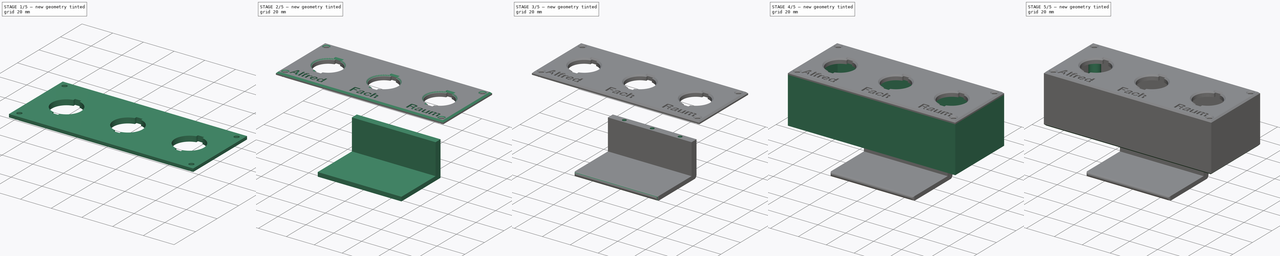
[diagram: build sequence overview — one tinted view per stage of 5, left to right]
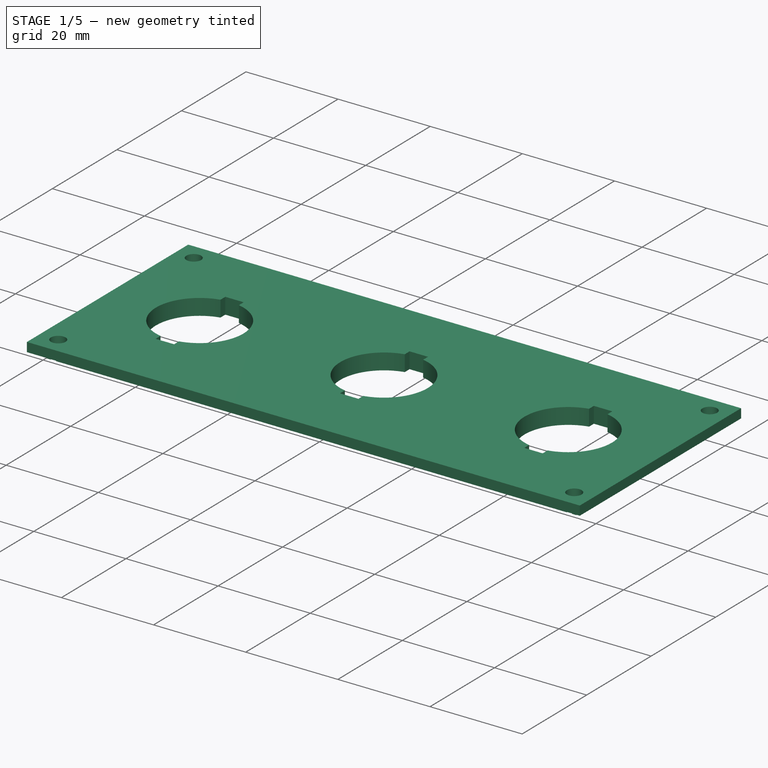
[diagram: stage 1 of 5 — iso view after this stage's code; geometry added in this stage tinted green]
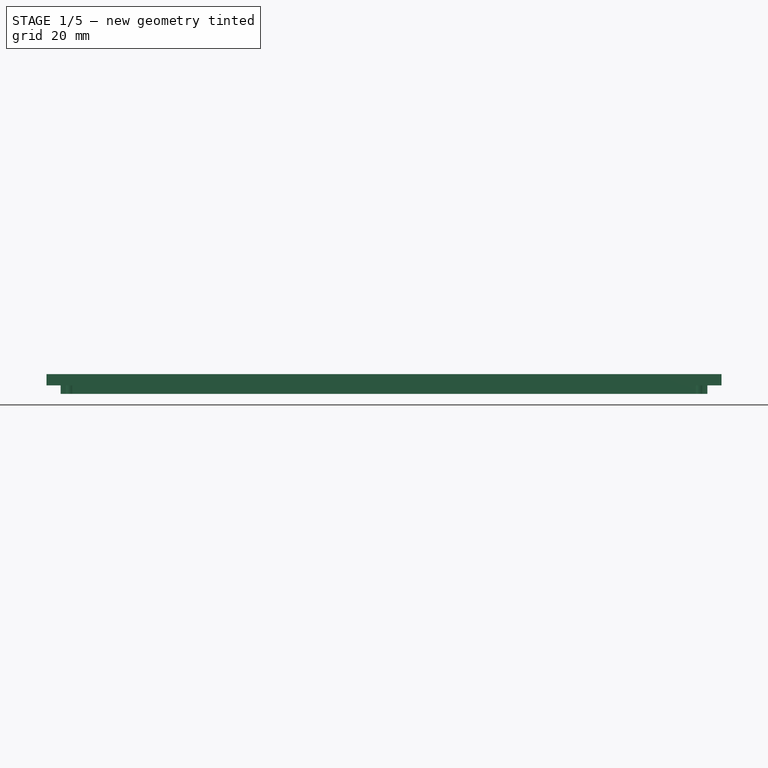
[diagram: stage 1 of 5 — front view after this stage's code; geometry added in this stage tinted green]
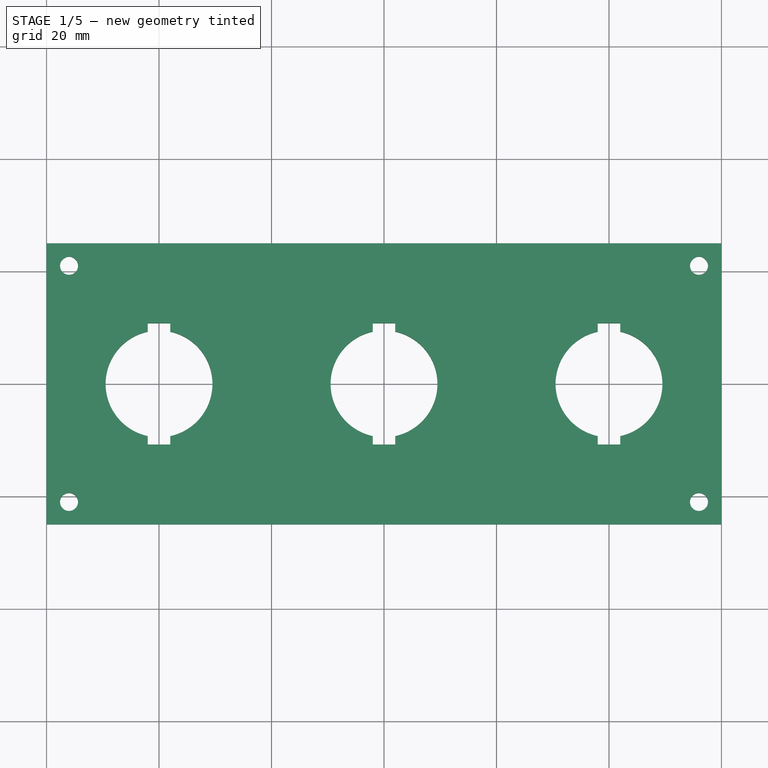
[diagram: stage 1 of 5 — top view after this stage's code; geometry added in this stage tinted green]
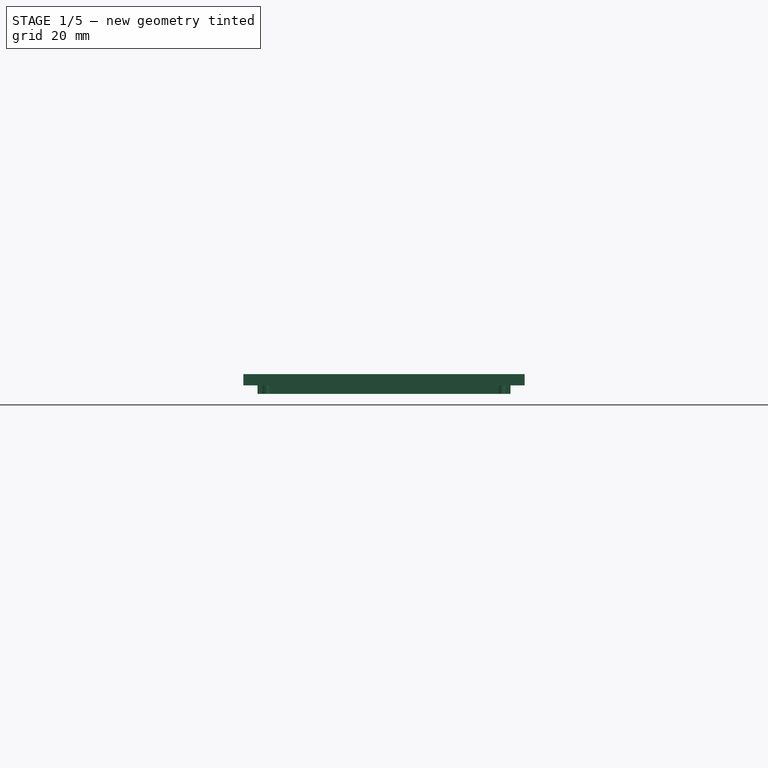
[diagram: stage 1 of 5 — right view after this stage's code; geometry added in this stage tinted green]
FCSTD DOCUMENT  (FreeCAD 1.0R39109 (Git))
Label: 2025-05-06_SchalterPanel
License: All rights reserved
LicenseURL: http://en.wikipedia.org/wiki/All_rights_reserved
objects: Sketcher::SketchObject×13, PartDesign::Pad×7, PartDesign::Pocket×7, PartDesign::Chamfer×3, PartDesign::Body×3, PartDesign::Fillet×2, Part::Part2DObjectPython×1
note: 87 computed .brp shape members not serialized (recipe doc carries the construction recipe); baked Part::Feature solids carry a one-line shape summary decoded from their .brp

FEATURE [PartDesign::Body] Body  label="Gehäuse"
  AllowCompound = false
  Group = -> [Sketch,Pad,Sketch001,Pocket,Sketch002,Pad001,Sketch003,Pocket001,Sketch004,Pad002,Sketch005,Pocket002,Chamfer,Chamfer001]
  Origin = -> Origin
  Tip = -> Chamfer001
FEATURE [Sketcher::SketchObject] Sketch006
  ArcFitTolerance = 1e-06
  AttachmentOffset = pos=(0,0,33) rot=(0,0,1;0rad)
  AttachmentSupport = -> [XY_Plane001]
  FullyConstrained = true
  MakeInternals = false
  MapMode = 5
  Placement = pos=(0,0,33) rot=(0,0,1;0rad)
  sketch-geometry (5):
    g0: LineSegment StartX=-60 StartY=-25 StartZ=0 EndX=60 EndY=-25 EndZ=0
    g1: LineSegment StartX=60 StartY=-25 StartZ=0 EndX=60 EndY=25 EndZ=0
    g2: LineSegment StartX=60 StartY=25 StartZ=0 EndX=-60 EndY=25 EndZ=0
    g3: LineSegment StartX=-60 StartY=25 StartZ=0 EndX=-60 EndY=-25 EndZ=0
    g4: GeomPoint [constr] X=0 Y=0 Z=0
  constraints (12):
    c: Coincident(g0,g1)
    c: Coincident(g1,g2)
    c: Coincident(g2,g3)
    c: Coincident(g3,g0)
    c: Horizontal(g0)
    c: Horizontal(g2)
    c: Vertical(g1)
    c: Vertical(g3)
    c: Symmetric(g2,g0,g4)
    c: Distance(g1,g3) = 120
    c: Distance(g0,g2) = 50
    c: Coincident(g4,g-1)
FEATURE [PartDesign::Pad] Pad003  label="Grundplatte_deckel"
  Direction = (0,0,1)
  Length = 2
  Length2 = 10
  Profile = -> Sketch006
  ReferenceAxis = -> Sketch006 [N_Axis]
  Suppressed = false
  Type = 0
FEATURE [Sketcher::SketchObject] Sketch007
  ArcFitTolerance = 1e-06
  AttachmentSupport = -> [Pad003]
  FullyConstrained = true
  MakeInternals = false
  MapMode = 5
  Placement = pos=(0,0,35) rot=(0,0,1;0rad)
  sketch-geometry (26):
    g0: ArcOfCircle CenterX=0 CenterY=0 CenterZ=0 NormalX=0 NormalY=0 NormalZ=1 AngleXU=0 Radius=9.5 StartAngle=4.9245 EndAngle=7.64187
    g1: ArcOfCircle CenterX=-40 CenterY=0 CenterZ=0 NormalX=0 NormalY=0 NormalZ=1 AngleXU=0 Radius=9.5 StartAngle=1.78291 EndAngle=4.50028
    g2: ArcOfCircle CenterX=40 CenterY=2e-16 CenterZ=0 NormalX=0 NormalY=0 NormalZ=1 AngleXU=0 Radius=9.5 StartAngle=1.78291 EndAngle=4.50028
    g3: LineSegment [constr] StartX=40 StartY=20 StartZ=0 EndX=40 EndY=-20 EndZ=0
    g4: LineSegment [constr] StartX=-40 StartY=20 StartZ=0 EndX=-40 EndY=-20 EndZ=0
    g5: LineSegment StartX=-42 StartY=10.7871 StartZ=0 EndX=-38 EndY=10.7871 EndZ=0
    g6: LineSegment StartX=-42 StartY=10.7871 StartZ=0 EndX=-42 EndY=9.28709 EndZ=0
    g7: LineSegment StartX=-38 StartY=10.7871 StartZ=0 EndX=-38 EndY=9.28709 EndZ=0
    g8: LineSegment StartX=-42 StartY=-10.7871 StartZ=0 EndX=-38 EndY=-10.7871 EndZ=0
    g9: LineSegment StartX=-42 StartY=-10.7871 StartZ=0 EndX=-42 EndY=-9.28709 EndZ=0
    g10: LineSegment StartX=-38 StartY=-10.7871 StartZ=0 EndX=-38 EndY=-9.28709 EndZ=0
    g11: LineSegment StartX=-2 StartY=10.7871 StartZ=0 EndX=2 EndY=10.7871 EndZ=0
    g12: LineSegment StartX=-2 StartY=10.7871 StartZ=0 EndX=-2 EndY=9.28709 EndZ=0
    g13: LineSegment StartX=2 StartY=10.7871 StartZ=0 EndX=2 EndY=9.28709 EndZ=0
    g14: LineSegment StartX=38 StartY=9.28709 StartZ=0 EndX=38 EndY=10.7871 EndZ=0
    g15: LineSegment StartX=38 StartY=10.7871 StartZ=0 EndX=42 EndY=10.7871 EndZ=0
    g16: LineSegment StartX=42 StartY=10.7871 StartZ=0 EndX=42 EndY=9.28709 EndZ=0
    g17: LineSegment StartX=-2 StartY=-9.28709 StartZ=0 EndX=-2 EndY=-10.7871 EndZ=0
    g18: LineSegment StartX=-2 StartY=-10.7871 StartZ=0 EndX=2 EndY=-10.7871 EndZ=0
    g19: LineSegment StartX=2 StartY=-10.7871 StartZ=0 EndX=2 EndY=-9.28709 EndZ=0
    g20: LineSegment StartX=38 StartY=-9.28709 StartZ=0 EndX=38 EndY=-10.7871 EndZ=0
    g21: LineSegment StartX=38 StartY=-10.7871 StartZ=0 EndX=42 EndY=-10.7871 EndZ=0
    g22: LineSegment StartX=42 StartY=-10.7871 StartZ=0 EndX=42 EndY=-9.28709 EndZ=0
    g23: ArcOfCircle CenterX=-40 CenterY=0 CenterZ=0 NormalX=0 NormalY=0 NormalZ=1 AngleXU=0 Radius=9.5 StartAngle=4.9245 EndAngle=7.64187
    g24: ArcOfCircle CenterX=0 CenterY=0 CenterZ=0 NormalX=0 NormalY=0 NormalZ=1 AngleXU=0 Radius=9.5 StartAngle=1.78291 EndAngle=4.50028
    g25: ArcOfCircle CenterX=40 CenterY=2e-16 CenterZ=0 NormalX=0 NormalY=0 NormalZ=1 AngleXU=0 Radius=9.5 StartAngle=4.9245 EndAngle=7.64187
  constraints (79):
    c: Coincident(g0,g-1)
    c: PointOnObject(g1,g-1)
    c: Symmetric(g1,g2,g-2)
    c: Equal(g1,g0)
    c: Equal(g0,g2)
    c: Diameter(g1) = 19
    c: DistanceX(g1,g-1) = 40
    c: Vertical(g3)
    c: Vertical(g4)
    c: Symmetric(g3,g3,g2)
    c: Symmetric(g4,g4,g1)
    c: Coincident(g6,g5)
    c: Coincident(g7,g5)
    c: Vertical(g7)
    c: Vertical(g6)
    c: Horizontal(g8)
    c: Coincident(g9,g8)
    c: Vertical(g9)
    c: Coincident(g10,g8)
    c: PointOnObject(g10,g23)
    c: Vertical(g10)
    c: Coincident(g12,g11)
    c: PointOnObject(g12,g24)
    c: Vertical(g12)
    c: Coincident(g13,g11)
    c: Vertical(g13)
    c: Vertical(g14)
    c: Coincident(g15,g14)
    c: Coincident(g16,g15)
    c: Vertical(g16)
    c: Vertical(g17)
    c: Coincident(g18,g17)
    c: Horizontal(g18)
    c: Coincident(g19,g18)
    c: Vertical(g19)
    c: Vertical(g20)
    c: Coincident(g21,g20)
    c: Horizontal(g21)
    c: Coincident(g22,g21)
    c: PointOnObject(g22,g25)
    c: Vertical(g22)
    c: Symmetric(g5,g5,g4)
    c: Symmetric(g11,g11,g-2)
    c: Symmetric(g14,g15,g3)
    c: Horizontal(g5,g11)
    c: Horizontal(g11,g15)
    c: Horizontal(g8,g18)
    c: Horizontal(g18,g21)
    c: Vertical(g6,g9)
    c: Vertical(g7,g8)
    c: Vertical(g12,g17)
    c: Vertical(g13,g19)
    c: Vertical(g14,g20)
    c: Vertical(g22,g16)
    c: DistanceY(g6,g6) = 1.5
    c: DistanceY(g9,g9) = 1.5
    c: DistanceX(g5,g5) = 4
    c: Equal(g5,g11)
    c: Equal(g11,g15)
    c: DistanceY(g4,g4) = 40
    c: DistanceY(g3,g3) = 40
    c: Coincident(g23,g7)
    c: Coincident(g1,g6)
    c: Equal(g1,g23)
    c: Coincident(g1,g9)
    c: PointOnObject(g23,g10)
    c: Coincident(g1,g23)
    c: Coincident(g24,g17)
    c: Coincident(g0,g19)
    c: Equal(g0,g24)
    c: Coincident(g0,g13)
    c: PointOnObject(g24,g12)
    c: Coincident(g0,g24)
    c: Coincident(g2,g14)
    c: Equal(g2,g25)
    c: PointOnObject(g25,g22)
    c: Coincident(g2,g25)
    c: Coincident(g2,g20)
    c: Coincident(g25,g16)
FEATURE [Sketcher::SketchObject] Sketch008
  ArcFitTolerance = 1e-06
  AttachmentSupport = -> [Pad003]
  FullyConstrained = true
  MakeInternals = false
  MapMode = 5
  Placement = pos=(0,0,33) rot=(1,0,0;3.14159rad)
  sketch-geometry (5):
    g0: LineSegment StartX=-57.5 StartY=22.5 StartZ=0 EndX=-57.5 EndY=-22.5 EndZ=0
    g1: LineSegment StartX=-57.5 StartY=-22.5 StartZ=0 EndX=57.5 EndY=-22.5 EndZ=0
    g2: LineSegment StartX=57.5 StartY=-22.5 StartZ=0 EndX=57.5 EndY=22.5 EndZ=0
    g3: LineSegment StartX=57.5 StartY=22.5 StartZ=0 EndX=-57.5 EndY=22.5 EndZ=0
    g4: GeomPoint [constr] X=0 Y=1e-16 Z=0
  constraints (12):
    c: Coincident(g0,g1)
    c: Coincident(g1,g2)
    c: Coincident(g2,g3)
    c: Coincident(g3,g0)
    c: Vertical(g0)
    c: Vertical(g2)
    c: Horizontal(g1)
    c: Horizontal(g3)
    c: Symmetric(g2,g0,g4)
    c: Coincident(g4,g-1)
    c: DistanceX(g3,g3) = 115
    c: DistanceY(g0,g0) = 45
FEATURE [PartDesign::Pad] Pad004  label="Erhöhung Passung"
  BaseFeature = -> Pad003
  Direction = (0,0,-1)
  Length = 1.5
  Length2 = 10
  Profile = -> Sketch008
  ReferenceAxis = -> Sketch008 [N_Axis]
  Suppressed = false
  Type = 0
FEATURE [PartDesign::Pocket] Pocket003  label="Bohrung-Schalter"
  BaseFeature = -> Pad004
  Direction = (0,0,-1)
  Length = 5
  Length2 = 5
  Profile = -> Sketch007
  ReferenceAxis = -> Sketch007 [N_Axis]
  Suppressed = false
  Type = 0
FEATURE [Sketcher::SketchObject] Sketch009
  ArcFitTolerance = 1e-06
  AttachmentSupport = -> [Pocket003]
  ExternalGeometry = -> [Pocket003]
  FullyConstrained = true
  MakeInternals = false
  MapMode = 5
  Placement = pos=(0,0,35) rot=(0,0,1;0rad)
  sketch-geometry (4):
    g0: Circle CenterX=-56 CenterY=21 CenterZ=0 NormalX=0 NormalY=0 NormalZ=1 AngleXU=0 Radius=1.6
    g1: Circle CenterX=56 CenterY=21 CenterZ=0 NormalX=0 NormalY=0 NormalZ=1 AngleXU=0 Radius=1.6
    g2: Circle CenterX=-56 CenterY=-21 CenterZ=0 NormalX=0 NormalY=0 NormalZ=1 AngleXU=0 Radius=1.6
    g3: Circle CenterX=56 CenterY=-21 CenterZ=0 NormalX=0 NormalY=0 NormalZ=1 AngleXU=0 Radius=1.6
  constraints (12):
    c: Horizontal(g0,g1)
    c: Horizontal(g2,g3)
    c: Vertical(g0,g2)
    c: Vertical(g1,g3)
    c: Equal(g0,g1)
    c: Equal(g1,g3)
    c: Equal(g3,g2)
    c: Diameter(g0) = 3.2
    c: Distance(g0,g-4) = 4
    c: Distance(g0,g-3) = 4
    c: Distance(g1,g-6) = 4
    c: Distance(g2,g-5) = 4
FEATURE [PartDesign::Pocket] Pocket004  label="SchraubenLöcher"
  BaseFeature = -> Pocket003
  Direction = (0,0,-1)
  Length = 4
  Length2 = 5
  Profile = -> Sketch009
  ReferenceAxis = -> Sketch009 [N_Axis]
  Suppressed = false
  Type = 0
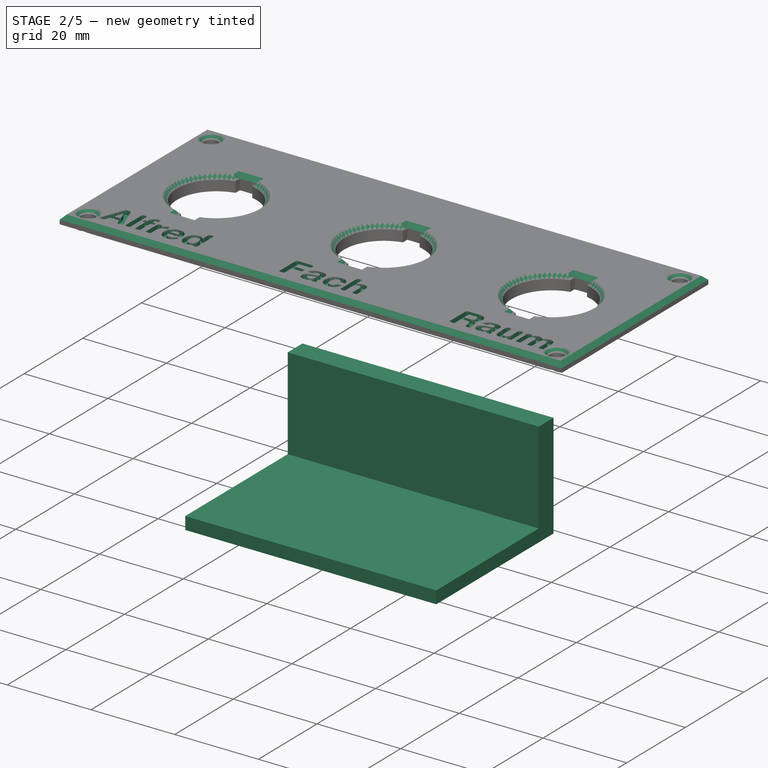
[diagram: stage 2 of 5 — iso view after this stage's code; geometry added in this stage tinted green]
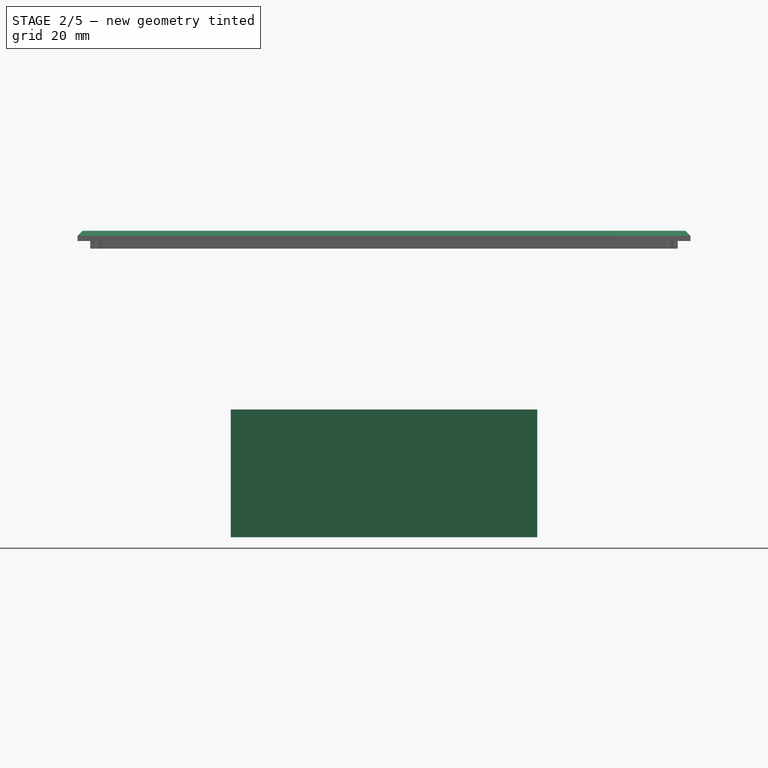
[diagram: stage 2 of 5 — front view after this stage's code; geometry added in this stage tinted green]
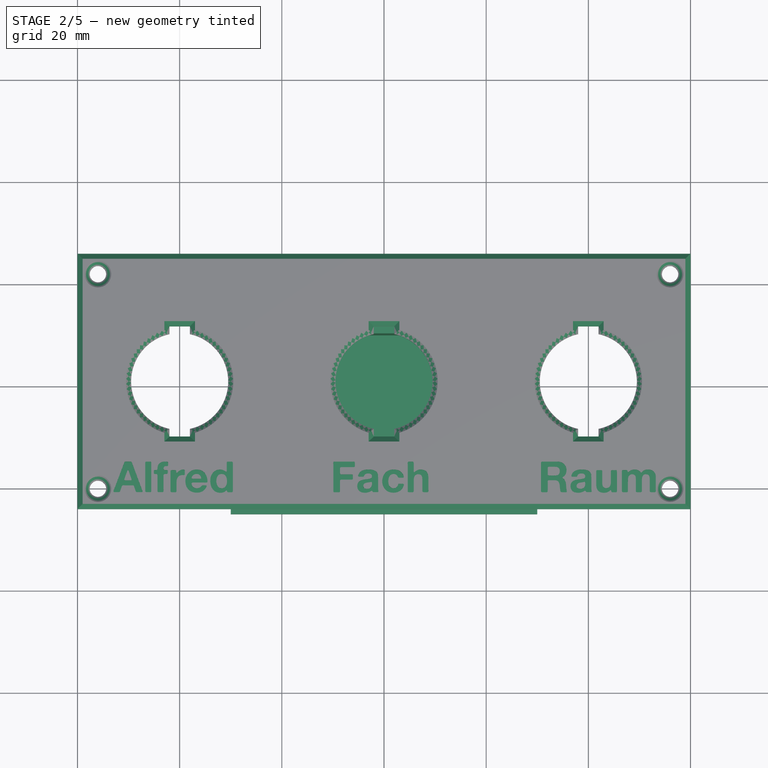
[diagram: stage 2 of 5 — top view after this stage's code; geometry added in this stage tinted green]
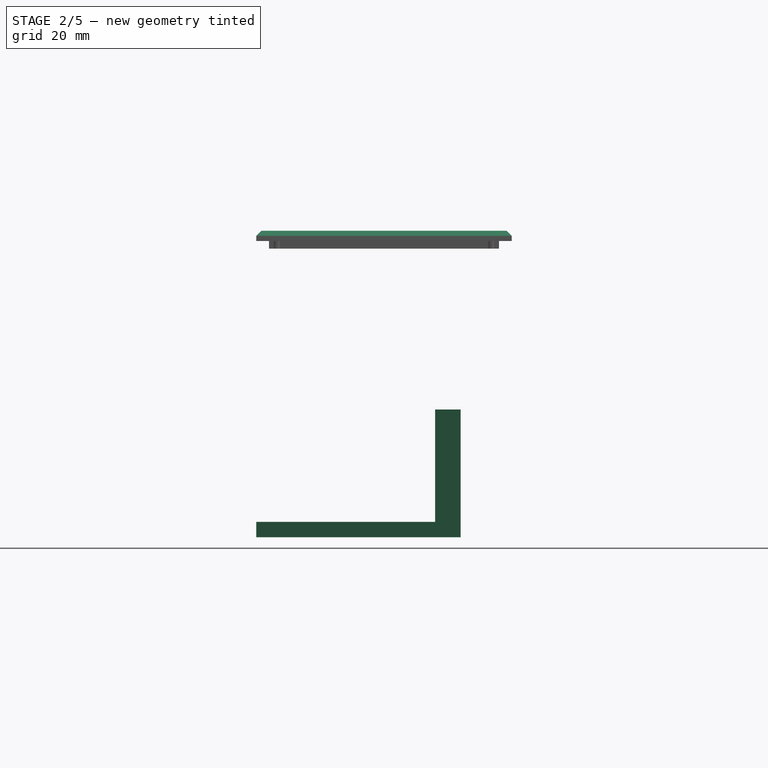
[diagram: stage 2 of 5 — right view after this stage's code; geometry added in this stage tinted green]
FEATURE [PartDesign::Chamfer] Chamfer002
  Angle = 45
  Base = -> Pocket004 [Face5]
  BaseFeature = -> Pocket004
  ChamferType = 0
  FlipDirection = false
  Size = 1
  Size2 = 1
  SupportTransform = false
  Suppressed = false
  UseAllEdges = false
FEATURE [Sketcher::SketchObject] Sketch010
  ArcFitTolerance = 1e-06
  AttachmentSupport = -> [XY_Plane002]
  FullyConstrained = true
  MakeInternals = false
  MapMode = 5
  sketch-geometry (5):
    g0: LineSegment StartX=30 StartY=15 StartZ=0 EndX=-30 EndY=15 EndZ=0
    g1: LineSegment StartX=-30 StartY=15 StartZ=0 EndX=-30 EndY=10 EndZ=0
    g2: LineSegment StartX=-30 StartY=10 StartZ=0 EndX=30 EndY=10 EndZ=0
    g3: LineSegment StartX=30 StartY=10 StartZ=0 EndX=30 EndY=15 EndZ=0
    g4: GeomPoint [constr] X=-2e-16 Y=12.5 Z=0
  constraints (13):
    c: Coincident(g0,g1)
    c: Coincident(g1,g2)
    c: Coincident(g2,g3)
    c: Coincident(g3,g0)
    c: Horizontal(g0)
    c: Horizontal(g2)
    c: Vertical(g1)
    c: Vertical(g3)
    c: Symmetric(g2,g0,g4)
    c: PointOnObject(g4,g-2)
    c: Distance(g3,g3) = 5
    c: Distance(g-1,g2) = 10
    c: DistanceX(g2,g2) = 60
FEATURE [PartDesign::Pad] Pad005  label="Oberteil_Klemme"
  Direction = (0,0,1)
  Length = 22
  Length2 = 10
  Profile = -> Sketch010
  ReferenceAxis = -> Sketch010 [N_Axis]
  Reversed = true
  Suppressed = false
  Type = 0
FEATURE [Sketcher::SketchObject] Sketch011
  ArcFitTolerance = 1e-06
  AttachmentSupport = -> [Pad005]
  ExternalGeometry = -> [Pad005]
  FullyConstrained = true
  MakeInternals = false
  MapMode = 5
  Placement = pos=(0,0,-22) rot=(1,0,0;3.14159rad)
  sketch-geometry (4):
    g0: LineSegment StartX=30 StartY=-15 StartZ=0 EndX=30 EndY=25 EndZ=0
    g1: LineSegment StartX=30 StartY=25 StartZ=0 EndX=-30 EndY=25 EndZ=0
    g2: LineSegment StartX=-30 StartY=25 StartZ=0 EndX=-30 EndY=-15 EndZ=0
    g3: LineSegment StartX=-30 StartY=-15 StartZ=0 EndX=30 EndY=-15 EndZ=0
  constraints (11):
    c: Coincident(g0,g1)
    c: Coincident(g1,g2)
    c: Coincident(g2,g3)
    c: Coincident(g3,g0)
    c: Vertical(g0)
    c: Vertical(g2)
    c: Horizontal(g1)
    c: Horizontal(g3)
    c: Distance(g0,g2) = 60
    c: Distance(g1,g3) = 40
    c: Coincident(g0,g-3)
FEATURE [PartDesign::Pad] Pad006  label="Hinterteil"
  BaseFeature = -> Pad005
  Direction = (0,0,-1)
  Length = 3
  Length2 = 10
  Profile = -> Sketch011
  ReferenceAxis = -> Sketch011 [N_Axis]
  Suppressed = false
  Type = 0
FEATURE [PartDesign::Body] Body002  label="Klemme"
  AllowCompound = false
  Group = -> [Sketch010,Pad005,Sketch011,Pad006,Fillet,Fillet001,Sketch012,Pocket005]
  Origin = -> Origin002
  Tip = -> Pocket005
FEATURE [Part::Part2DObjectPython] ShapeString  # Draft 2D object (typed FeaturePython)
  FontFile = <userpath>/Downloads/alte_haas_grotesk/AlteHaasGroteskBold.ttf
  Fuse = false
  Justification = 6
  JustificationReference = 0
  KeepLeftMargin = false
  MakeFace = true
  ObliqueAngle = 0
  Placement = pos=(-52.96,-21.71,35) rot=(0,0,1;0rad)
  ScaleToSize = true
  Size = 6
  String =  Alfred        Fach         Raum
  Tracking = 0
FEATURE [PartDesign::Pocket] Pocket006
  BaseFeature = -> Chamfer002
  Direction = (0,0,-1)
  Length = 1
  Length2 = 5
  Profile = -> ShapeString
  ReferenceAxis = -> ShapeString [N_Axis]
  Suppressed = false
  Type = 0
FEATURE [PartDesign::Body] Body001  label="Deckel"
  AllowCompound = false
  Group = -> [Sketch006,Pad003,Sketch007,Sketch008,Pad004,Pocket003,Sketch009,Pocket004,Chamfer002,ShapeString,Pocket006]
  Origin = -> Origin001
  Tip = -> Pocket006
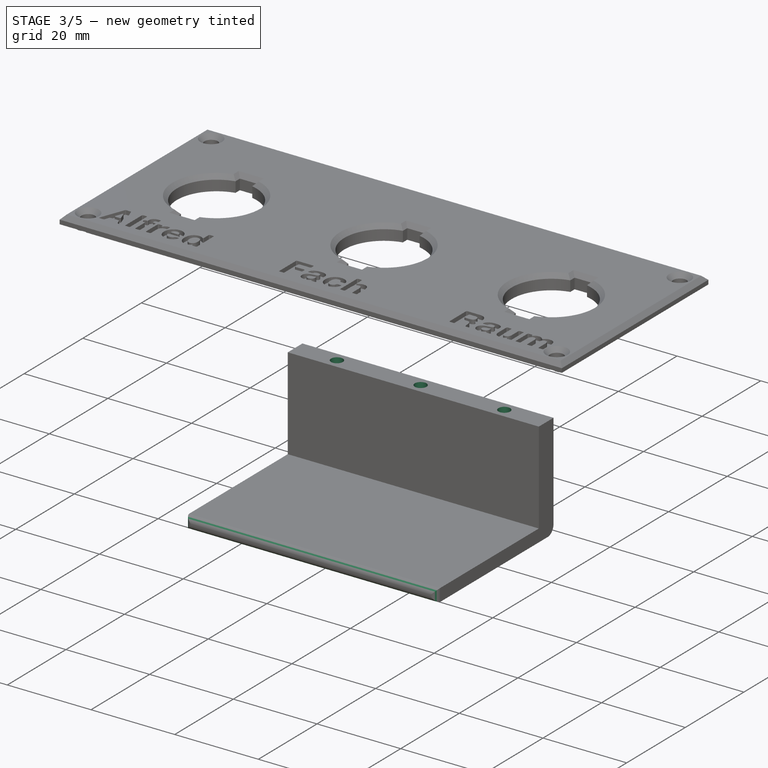
[diagram: stage 3 of 5 — iso view after this stage's code; geometry added in this stage tinted green]
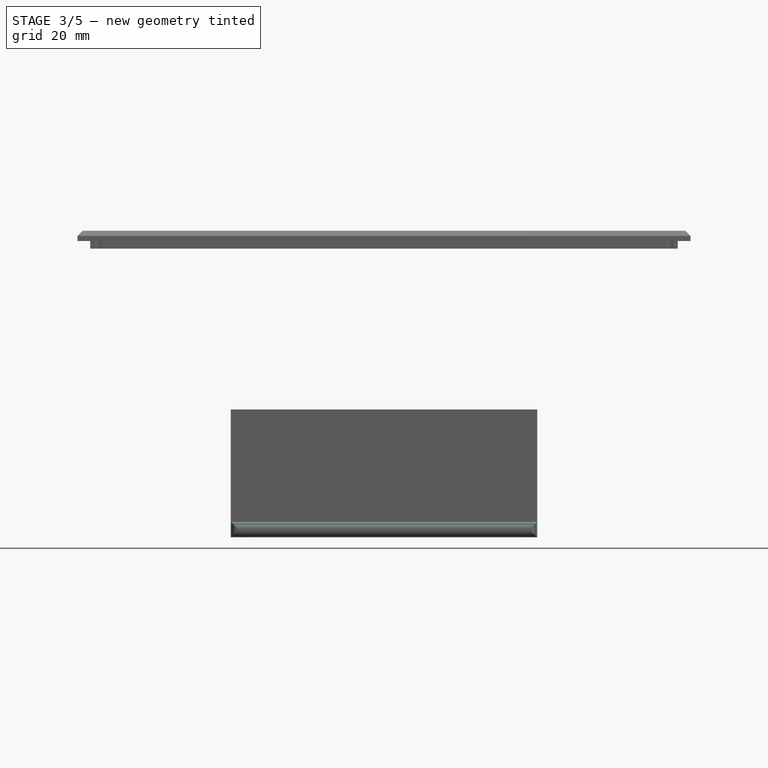
[diagram: stage 3 of 5 — front view after this stage's code; geometry added in this stage tinted green]
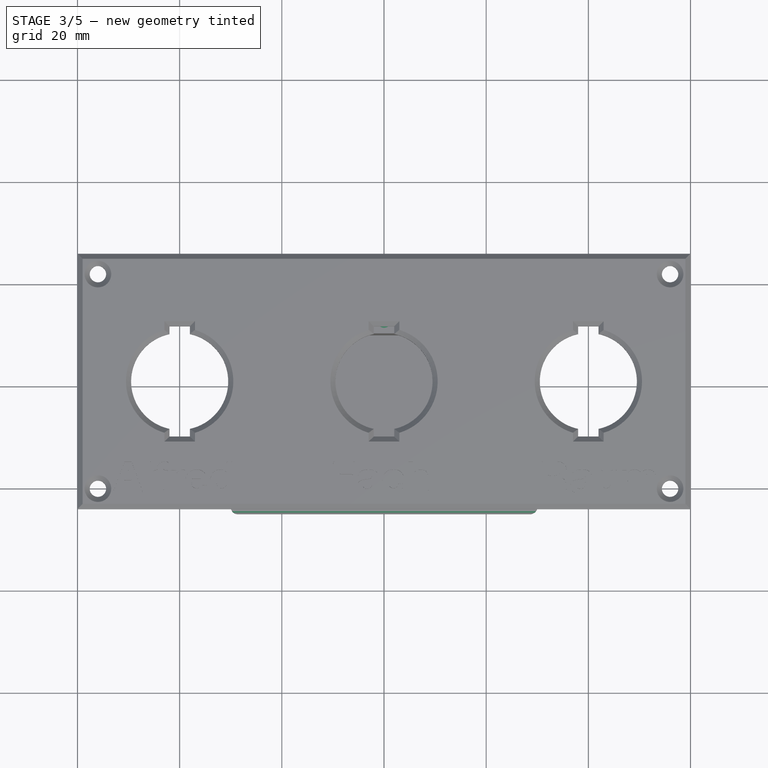
[diagram: stage 3 of 5 — top view after this stage's code; geometry added in this stage tinted green]
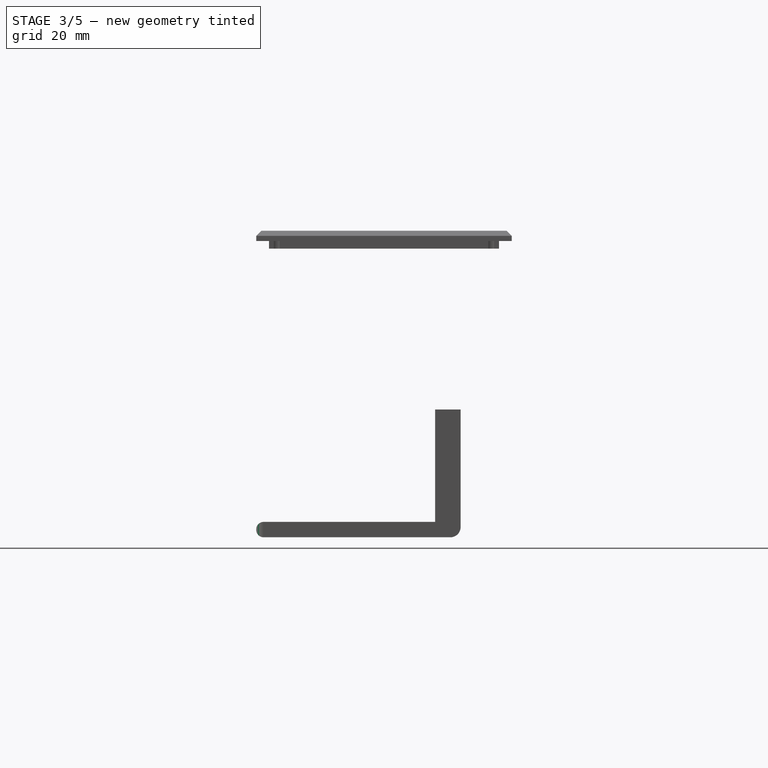
[diagram: stage 3 of 5 — right view after this stage's code; geometry added in this stage tinted green]
FEATURE [PartDesign::Fillet] Fillet  label="Abrundung_Oben"
  Base = -> Pad006 [Edge14]
  BaseFeature = -> Pad006
  Radius = 2
  SupportTransform = false
  Suppressed = false
  UseAllEdges = false
FEATURE [PartDesign::Fillet] Fillet001  label="Abrundung_unten"
  Base = -> Fillet [Face9]
  BaseFeature = -> Fillet
  Radius = 1.4
  SupportTransform = false
  Suppressed = false
  UseAllEdges = false
FEATURE [Sketcher::SketchObject] Sketch012
  ArcFitTolerance = 1e-06
  AttachmentSupport = -> [Fillet001]
  ExternalGeometry = -> [Fillet001]
  FullyConstrained = true
  MakeInternals = false
  MapMode = 5
  sketch-geometry (3):
    g0: Circle CenterX=-20 CenterY=12.5 CenterZ=0 NormalX=0 NormalY=0 NormalZ=1 AngleXU=0 Radius=1.4
    g1: Circle CenterX=0 CenterY=12.5 CenterZ=0 NormalX=0 NormalY=0 NormalZ=1 AngleXU=0 Radius=1.4
    g2: Circle CenterX=20 CenterY=12.5 CenterZ=0 NormalX=0 NormalY=0 NormalZ=1 AngleXU=0 Radius=1.4
  constraints (8):
    c: PointOnObject(g1,g-2)
    c: Symmetric(g2,g0,g1)
    c: Equal(g0,g1)
    c: Equal(g1,g2)
    c: Diameter(g0) = 2.8
    c: Distance(g0,g-2) = 20
    c: Distance(g0,g-3) = 2.5
    c: Horizontal(g0,g1)
FEATURE [PartDesign::Pocket] Pocket005  label="SchraubenLöcher_Klemme"
  BaseFeature = -> Fillet001
  Direction = (0,0,-1)
  Length = 15
  Length2 = 5
  Profile = -> Sketch012
  ReferenceAxis = -> Sketch012 [N_Axis]
  Suppressed = false
  Type = 0
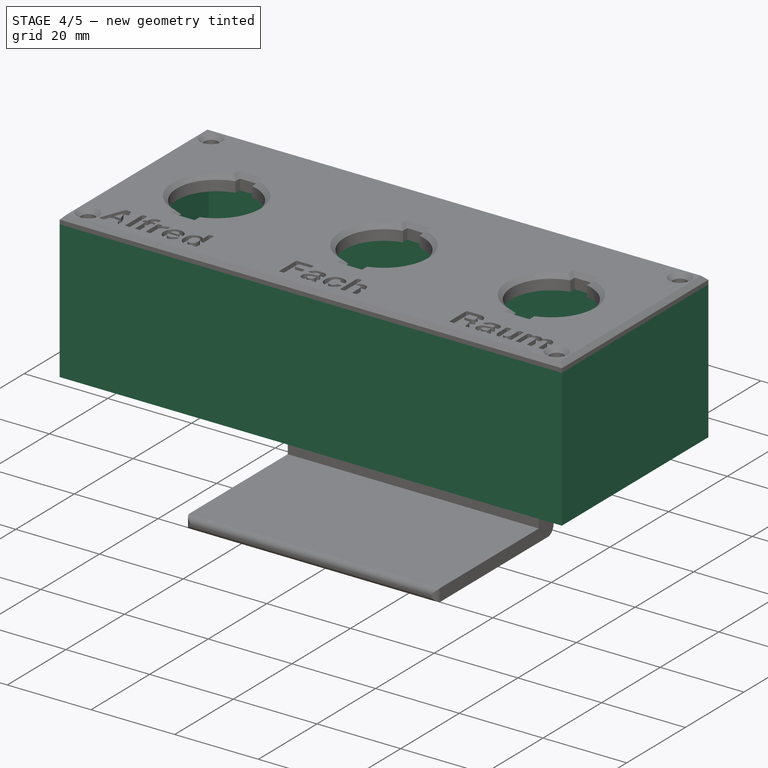
[diagram: stage 4 of 5 — iso view after this stage's code; geometry added in this stage tinted green]
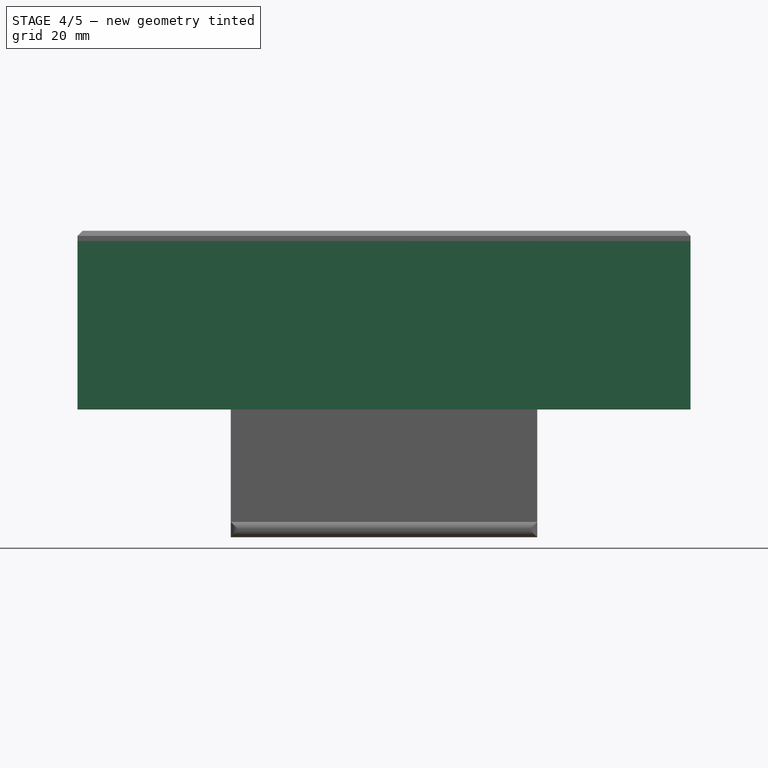
[diagram: stage 4 of 5 — front view after this stage's code; geometry added in this stage tinted green]
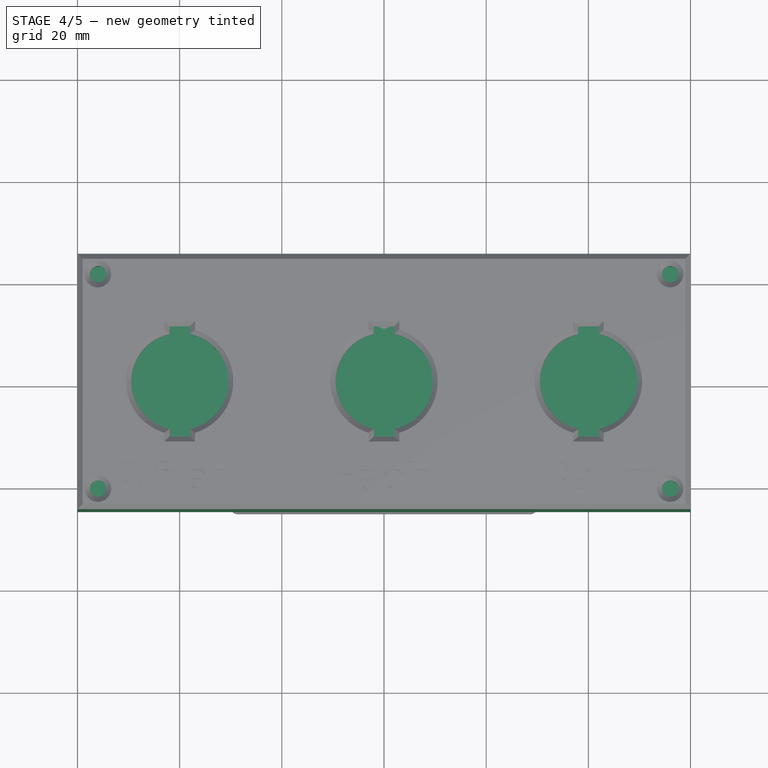
[diagram: stage 4 of 5 — top view after this stage's code; geometry added in this stage tinted green]
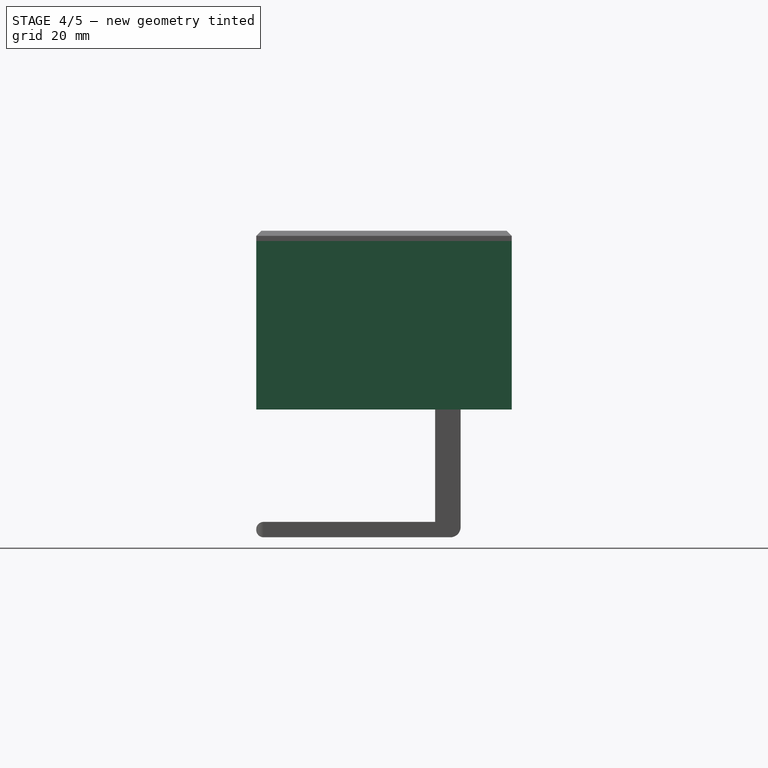
[diagram: stage 4 of 5 — right view after this stage's code; geometry added in this stage tinted green]
FEATURE [Sketcher::SketchObject] Sketch
  ArcFitTolerance = 1e-06
  AttachmentSupport = -> [XY_Plane]
  FullyConstrained = true
  MakeInternals = false
  MapMode = 5
  sketch-geometry (5):
    g0: LineSegment StartX=-60 StartY=25 StartZ=0 EndX=-60 EndY=-25 EndZ=0
    g1: LineSegment StartX=-60 StartY=-25 StartZ=0 EndX=60 EndY=-25 EndZ=0
    g2: LineSegment StartX=60 StartY=-25 StartZ=0 EndX=60 EndY=25 EndZ=0
    g3: LineSegment StartX=60 StartY=25 StartZ=0 EndX=-60 EndY=25 EndZ=0
    g4: GeomPoint [constr] X=0 Y=-3e-16 Z=0
  constraints (12):
    c: Coincident(g0,g1)
    c: Coincident(g1,g2)
    c: Coincident(g2,g3)
    c: Coincident(g3,g0)
    c: Vertical(g0)
    c: Vertical(g2)
    c: Horizontal(g1)
    c: Horizontal(g3)
    c: Symmetric(g2,g0,g4)
    c: Coincident(g4,g-1)
    c: DistanceX(g3,g3) = 120
    c: DistanceY(g0,g0) = 50
FEATURE [PartDesign::Pad] Pad  label="Grundplatte"
  Direction = (0,0,1)
  Length = 3
  Length2 = 10
  Profile = -> Sketch
  ReferenceAxis = -> Sketch [N_Axis]
  Suppressed = false
  Type = 0
FEATURE [Sketcher::SketchObject] Sketch001
  ArcFitTolerance = 1e-06
  AttachmentSupport = -> [Pad]
  ExternalGeometry = -> [Pad]
  FullyConstrained = true
  MakeInternals = false
  MapMode = 5
  Placement = pos=(0,0,3) rot=(0,0,1;0rad)
  sketch-geometry (4):
    g0: Circle CenterX=10 CenterY=19 CenterZ=0 NormalX=0 NormalY=0 NormalZ=1 AngleXU=0 Radius=4
    g1: Circle CenterX=22 CenterY=19 CenterZ=0 NormalX=0 NormalY=0 NormalZ=1 AngleXU=0 Radius=4
    g2: Circle CenterX=34 CenterY=19 CenterZ=0 NormalX=0 NormalY=0 NormalZ=1 AngleXU=0 Radius=4
    g3: Circle CenterX=46 CenterY=19 CenterZ=0 NormalX=0 NormalY=0 NormalZ=1 AngleXU=0 Radius=4
  constraints (12):
    c: Horizontal(g0,g1)
    c: Horizontal(g1,g2)
    c: Horizontal(g2,g3)
    c: Equal(g0,g1)
    c: Equal(g1,g2)
    c: Equal(g2,g3)
    c: Diameter(g0) = 8
    c: DistanceX(g0,g1) = 12
    c: DistanceX(g1,g2) = 12
    c: DistanceX(g2,g3) = 12
    c: DistanceX(g3,g-3) = 14
    c: Distance(g3,g-3) = 6
FEATURE [PartDesign::Pocket] Pocket  label="KabelDurchführung_Grundplatte"
  BaseFeature = -> Pad
  Direction = (0,0,-1)
  Length = 5
  Length2 = 5
  Profile = -> Sketch001
  ReferenceAxis = -> Sketch001 [N_Axis]
  Suppressed = false
  Type = 0
FEATURE [Sketcher::SketchObject] Sketch002
  ArcFitTolerance = 1e-06
  AttachmentSupport = -> [Pocket]
  ExternalGeometry = -> [Pocket]
  FullyConstrained = true
  MakeInternals = false
  MapMode = 5
  Placement = pos=(0,0,3) rot=(0,0,1;0rad)
  sketch-geometry (8):
    g0: LineSegment StartX=-60 StartY=25 StartZ=0 EndX=-60 EndY=-25 EndZ=0
    g1: LineSegment StartX=-60 StartY=-25 StartZ=0 EndX=60 EndY=-25 EndZ=0
    g2: LineSegment StartX=60 StartY=-25 StartZ=0 EndX=60 EndY=25 EndZ=0
    g3: LineSegment StartX=60 StartY=25 StartZ=0 EndX=-60 EndY=25 EndZ=0
    g4: LineSegment StartX=-58 StartY=23 StartZ=0 EndX=-58 EndY=-23 EndZ=0
    g5: LineSegment StartX=-58 StartY=-23 StartZ=0 EndX=58 EndY=-23 EndZ=0
    g6: LineSegment StartX=58 StartY=-23 StartZ=0 EndX=58 EndY=23 EndZ=0
    g7: LineSegment StartX=58 StartY=23 StartZ=0 EndX=-58 EndY=23 EndZ=0
  constraints (22):
    c: Coincident(g0,g1)
    c: Coincident(g1,g2)
    c: Coincident(g2,g3)
    c: Coincident(g3,g0)
    c: Vertical(g0)
    c: Vertical(g2)
    c: Horizontal(g1)
    c: Horizontal(g3)
    c: Coincident(g0,g-3)
    c: Coincident(g1,g-4)
    c: Coincident(g4,g5)
    c: Coincident(g5,g6)
    c: Coincident(g6,g7)
    c: Coincident(g7,g4)
    c: Vertical(g4)
    c: Vertical(g6)
    c: Horizontal(g5)
    c: Horizontal(g7)
    c: Distance(g5,g2) = 2
    c: Distance(g1,g5) = 2
    c: Distance(g6,g3) = 2
    c: Distance(g4,g0) = 2
FEATURE [PartDesign::Pad] Pad001  label="Korpus"
  BaseFeature = -> Pocket
  Direction = (0,0,1)
  Length = 30
  Length2 = 10
  Profile = -> Sketch002
  ReferenceAxis = -> Sketch002 [N_Axis]
  Suppressed = false
  Type = 0
FEATURE [Sketcher::SketchObject] Sketch003
  ArcFitTolerance = 1e-06
  AttachmentSupport = -> [Pad001]
  ExternalGeometry = -> [Pad001]
  FullyConstrained = true
  MakeInternals = false
  MapMode = 5
  Placement = pos=(0,0,0) rot=(1,0,0;3.14159rad)
  sketch-geometry (7):
    g0: LineSegment [constr] StartX=-30 StartY=-10 StartZ=0 EndX=-30 EndY=-15 EndZ=0
    g1: LineSegment [constr] StartX=-30 StartY=-15 StartZ=0 EndX=30 EndY=-15 EndZ=0
    g2: LineSegment [constr] StartX=30 StartY=-15 StartZ=0 EndX=30 EndY=-10 EndZ=0
    g3: LineSegment [constr] StartX=30 StartY=-10 StartZ=0 EndX=-30 EndY=-10 EndZ=0
    g4: Circle CenterX=-20 CenterY=-12.5 CenterZ=0 NormalX=0 NormalY=0 NormalZ=1 AngleXU=0 Radius=1.6
    g5: Circle CenterX=0 CenterY=-12.5 CenterZ=0 NormalX=0 NormalY=0 NormalZ=1 AngleXU=0 Radius=1.6
    g6: Circle CenterX=20 CenterY=-12.5 CenterZ=0 NormalX=0 NormalY=0 NormalZ=1 AngleXU=0 Radius=1.6
  constraints (19):
    c: Coincident(g0,g1)
    c: Coincident(g1,g2)
    c: Coincident(g2,g3)
    c: Coincident(g3,g0)
    c: Vertical(g0)
    c: Vertical(g2)
    c: Horizontal(g3)
    c: Symmetric(g0,g1,g-2)
    c: DistanceX(g1,g1) = 60
    c: DistanceY(g0,g0) = 5
    c: Distance(g1,g-3) = 10
    c: Horizontal(g4,g5)
    c: PointOnObject(g5,g-2)
    c: Symmetric(g4,g6,g-2)
    c: Equal(g4,g5)
    c: Equal(g5,g6)
    c: Distance(g4,g3) = 2.5
    c: Distance(g4,g-2) = 20
    c: Diameter(g6) = 3.2
FEATURE [PartDesign::Pocket] Pocket001  label="Schraubenlöcher-Klemme_Grundplatte"
  BaseFeature = -> Pad001
  Direction = (0,0,1)
  Length = 5
  Length2 = 5
  Profile = -> Sketch003
  ReferenceAxis = -> Sketch003 [N_Axis]
  Suppressed = false
  Type = 0
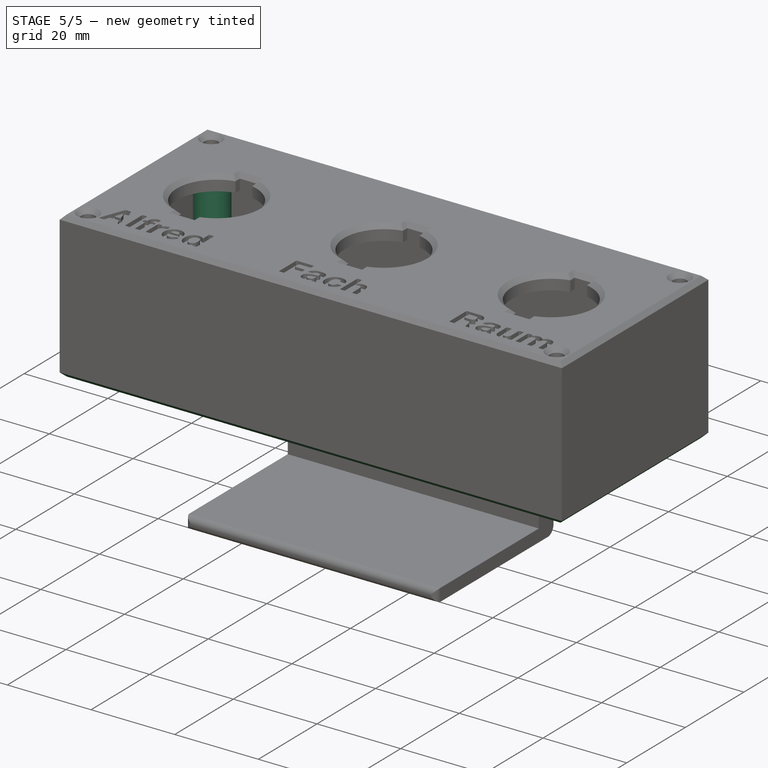
[diagram: stage 5 of 5 — iso view after this stage's code; geometry added in this stage tinted green]
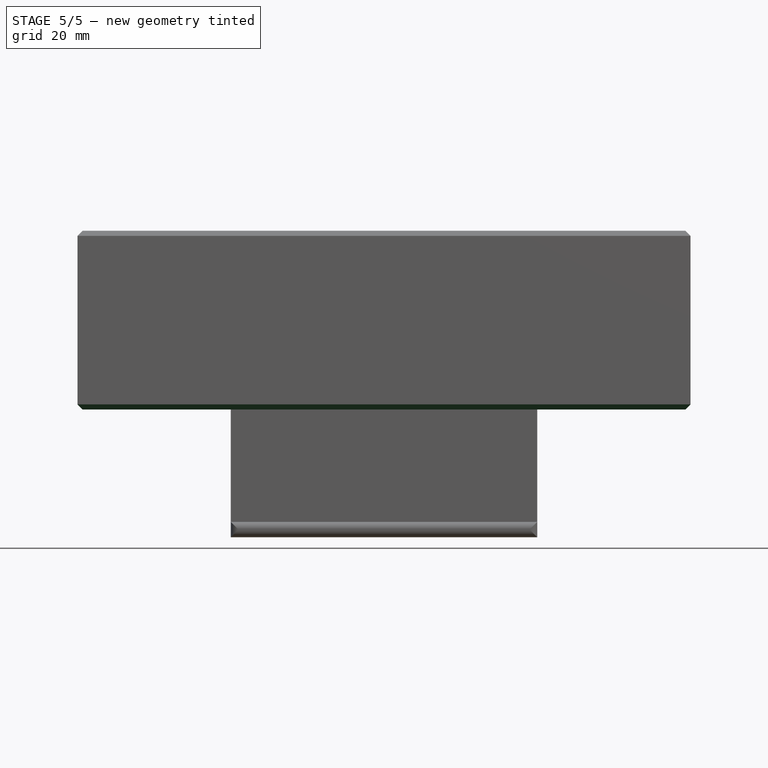
[diagram: stage 5 of 5 — front view after this stage's code; geometry added in this stage tinted green]
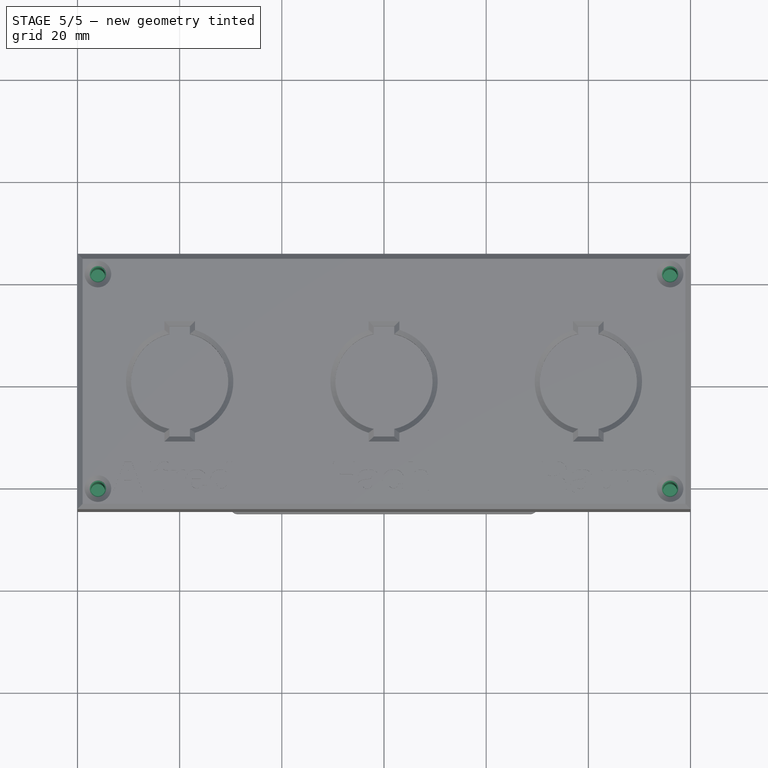
[diagram: stage 5 of 5 — top view after this stage's code; geometry added in this stage tinted green]
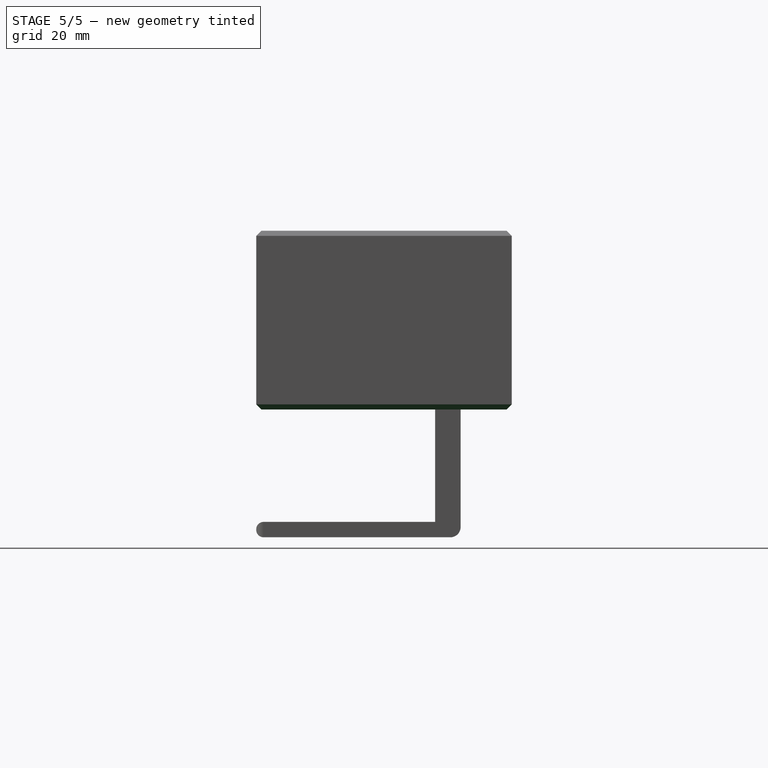
[diagram: stage 5 of 5 — right view after this stage's code; geometry added in this stage tinted green]
FEATURE [Sketcher::SketchObject] Sketch004
  ArcFitTolerance = 1e-06
  AttachmentSupport = -> [Pocket001]
  ExternalGeometry = -> [Pocket001]
  FullyConstrained = true
  MakeInternals = false
  MapMode = 5
  Placement = pos=(0,0,3) rot=(0,0,1;0rad)
  sketch-geometry (4):
    g0: Circle CenterX=-56 CenterY=21 CenterZ=0 NormalX=0 NormalY=0 NormalZ=1 AngleXU=0 Radius=4
    g1: Circle CenterX=-56 CenterY=-21 CenterZ=0 NormalX=0 NormalY=0 NormalZ=1 AngleXU=0 Radius=4
    g2: Circle CenterX=56 CenterY=21 CenterZ=0 NormalX=0 NormalY=0 NormalZ=1 AngleXU=0 Radius=4
    g3: Circle CenterX=56 CenterY=-21 CenterZ=0 NormalX=0 NormalY=0 NormalZ=1 AngleXU=0 Radius=4
  constraints (12):
    c: Equal(g0,g2)
    c: Equal(g2,g3)
    c: Equal(g3,g1)
    c: Tangent(g3,g-6)
    c: Tangent(g3,g-5)
    c: Tangent(g2,g-6)
    c: Tangent(g2,g-3)
    c: Tangent(g0,g-3)
    c: Tangent(g0,g-4)
    c: Tangent(g1,g-4)
    c: Tangent(g1,g-5)
    c: Diameter(g0) = 8
FEATURE [PartDesign::Pad] Pad002  label="SchraubenFutter_Deckelschrauben_Korpus"
  BaseFeature = -> Pocket001
  Direction = (0,0,1)
  Length = 28
  Length2 = 10
  Profile = -> Sketch004
  ReferenceAxis = -> Sketch004 [N_Axis]
  Suppressed = false
  Type = 0
FEATURE [Sketcher::SketchObject] Sketch005
  ArcFitTolerance = 1e-06
  AttachmentSupport = -> [Pad002]
  ExternalGeometry = -> [Pad002]
  FullyConstrained = true
  MakeInternals = false
  MapMode = 5
  Placement = pos=(0,0,31) rot=(0,0,1;0rad)
  sketch-geometry (4):
    g0: Circle CenterX=-56 CenterY=21 CenterZ=0 NormalX=0 NormalY=0 NormalZ=1 AngleXU=0 Radius=1.4
    g1: Circle CenterX=56 CenterY=21 CenterZ=0 NormalX=0 NormalY=0 NormalZ=1 AngleXU=0 Radius=1.4
    g2: Circle CenterX=56 CenterY=-21 CenterZ=0 NormalX=0 NormalY=0 NormalZ=1 AngleXU=0 Radius=1.4
    g3: Circle CenterX=-56 CenterY=-21 CenterZ=0 NormalX=0 NormalY=0 NormalZ=1 AngleXU=0 Radius=1.4
  constraints (8):
    c: Coincident(g0,g-3)
    c: Coincident(g1,g-4)
    c: Coincident(g2,g-5)
    c: Coincident(g3,g-6)
    c: Equal(g0,g1)
    c: Equal(g1,g2)
    c: Equal(g2,g3)
    c: Diameter(g0) = 2.8
FEATURE [PartDesign::Pocket] Pocket002  label="Schraubenlöcher-Deckel_Korpus"
  BaseFeature = -> Pad002
  Direction = (0,0,-1)
  Length = 26
  Length2 = 5
  Profile = -> Sketch005
  ReferenceAxis = -> Sketch005 [N_Axis]
  Suppressed = false
  Type = 0
FEATURE [PartDesign::Chamfer] Chamfer
  Angle = 45
  Base = -> Pocket002 [Edge111,Edge110,Edge109,Edge108]
  BaseFeature = -> Pocket002
  ChamferType = 0
  FlipDirection = false
  Size = 0.5
  Size2 = 1
  SupportTransform = false
  Suppressed = false
  UseAllEdges = false
FEATURE [PartDesign::Chamfer] Chamfer001
  Angle = 45
  Base = -> Chamfer [Edge113,Edge112,Edge114,Edge115]
  BaseFeature = -> Chamfer
  ChamferType = 0
  FlipDirection = false
  Size = 1
  Size2 = 1
  SupportTransform = false
  Suppressed = false
  UseAllEdges = false
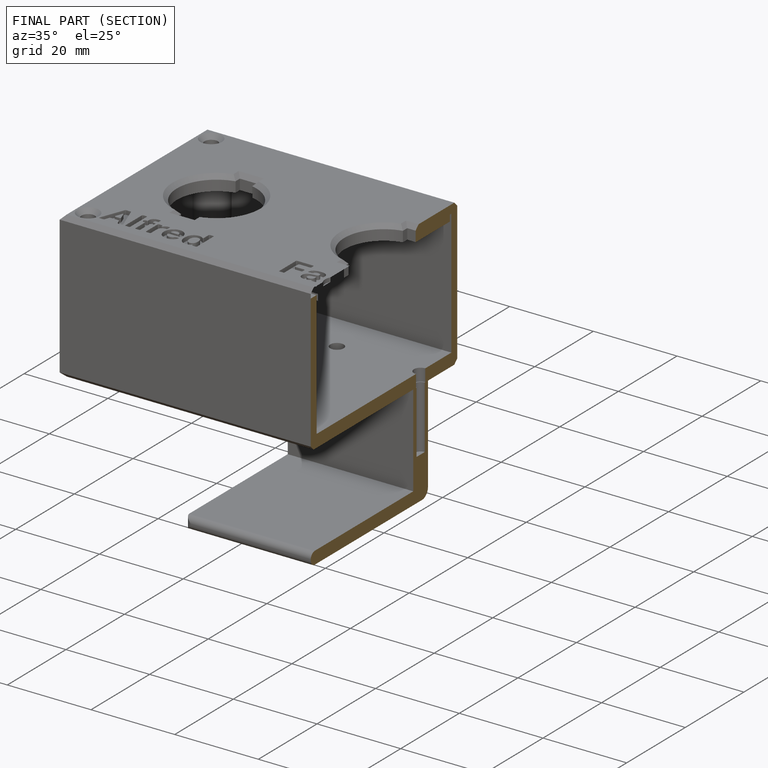
[diagram: finished part — half-section view (interior)]
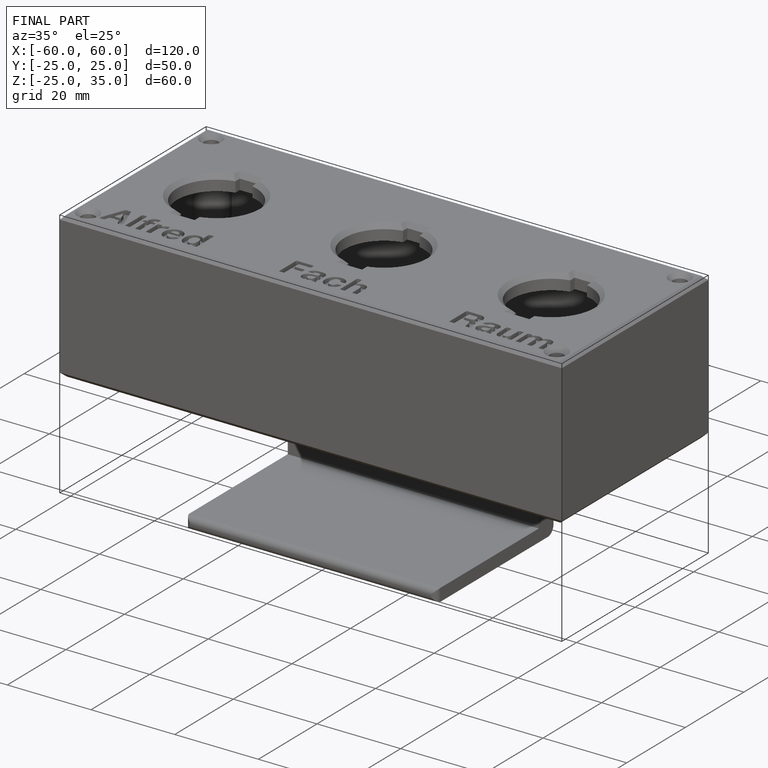
[diagram: finished part — iso view with bounding-box wireframe]
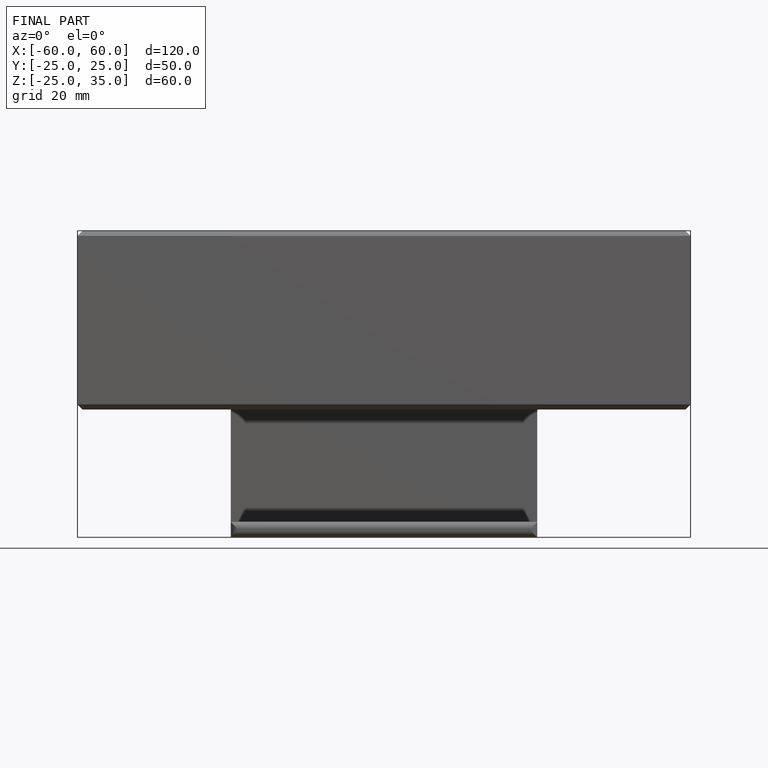
[diagram: finished part — front view with bounding-box wireframe]
